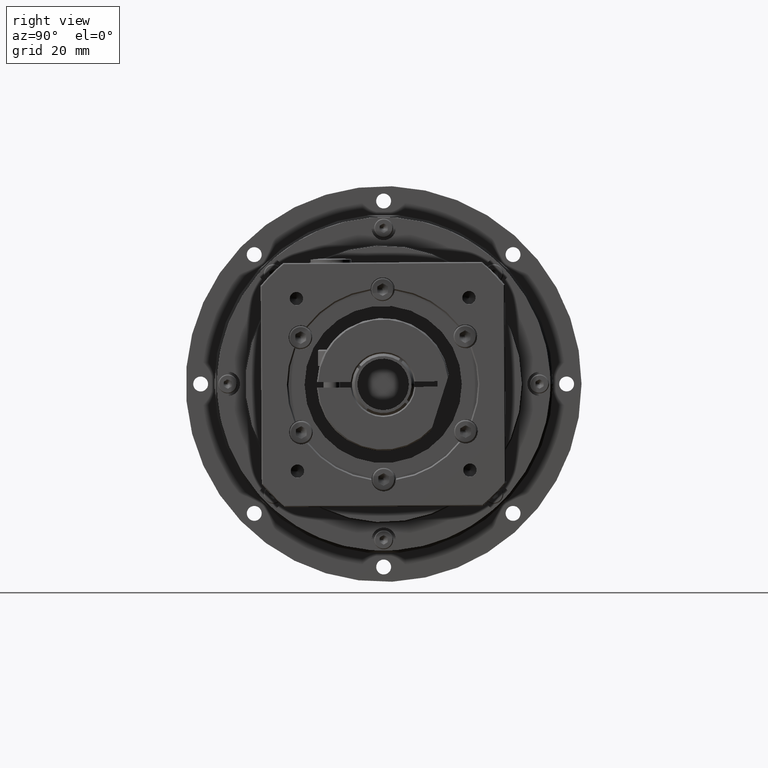
[diagram: clean part render]
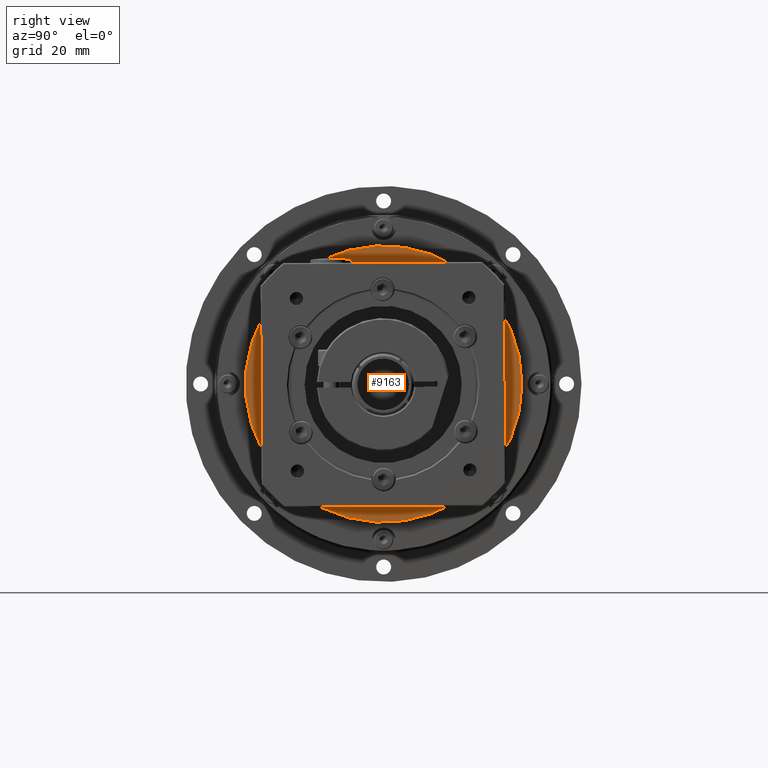
[diagram: same view with one face highlighted and labeled with its STEP entity id]
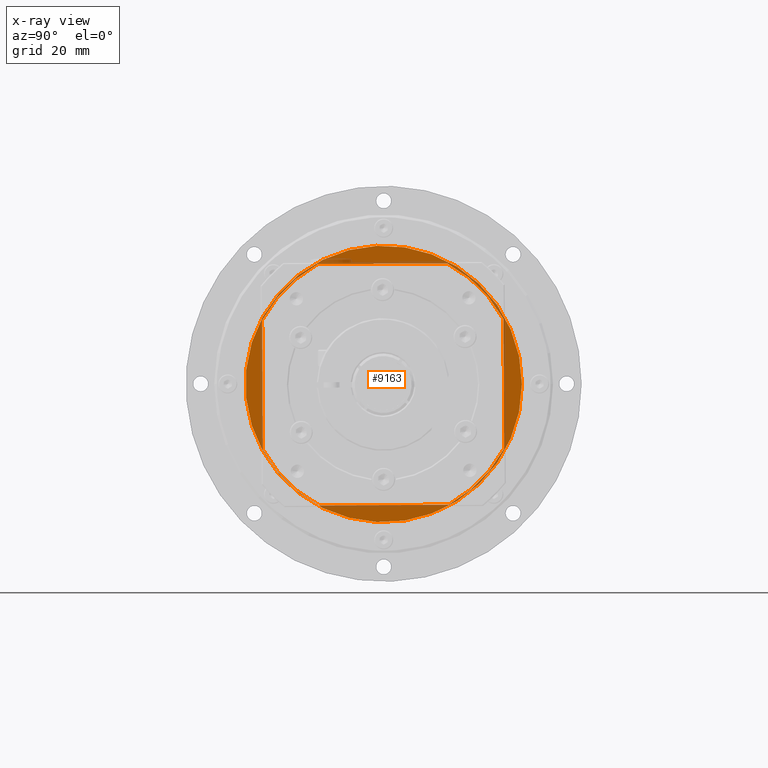
[diagram: x-ray of the same camera — body ghosted, the highlighted face saturated]
A machine part, right view. The second image highlights one B-rep face of the part: STEP entity #9163.
The next image is the same camera in x-ray: the body ghosted, the highlighted face saturated — about 19% of this face is hidden behind the body in this view.
In plain terms, the highlighted planar face has unit normal (1, -0, 0).
Its self-contained STEP definition (entity closure, byte-faithful):
#605=LINE('',#14768,#1032);
#606=LINE('',#14802,#1033);
#608=LINE('',#14840,#1035);
#610=LINE('',#14876,#1037);
#1032=VECTOR('',#11757,47.7493455452533);
#1033=VECTOR('',#11764,47.7493455452534);
#1035=VECTOR('',#11774,47.7493455452533);
#1037=VECTOR('',#11784,47.7493455452533);
#1414=PLANE('',#10122);
#1715=FACE_BOUND('',#3055,.T.);
#2250=FACE_OUTER_BOUND('',#3054,.T.);
#3054=EDGE_LOOP('',(#7270));
#3055=EDGE_LOOP('',(#7271,#7272,#7273,#7274,#7275,#7276,#7277,#7278));
#3699=CIRCLE('',#9946,50.5);
#3700=CIRCLE('',#9949,50.5);
#3701=CIRCLE('',#9952,50.5);
#3704=CIRCLE('',#9957,50.5);
#3791=CIRCLE('',#10123,51.);
#4365=VERTEX_POINT('',#14735);
#4366=VERTEX_POINT('',#14736);
#4367=VERTEX_POINT('',#14767);
#4368=VERTEX_POINT('',#14784);
#4369=VERTEX_POINT('',#14801);
#4370=VERTEX_POINT('',#14818);
#4373=VERTEX_POINT('',#14839);
#4375=VERTEX_POINT('',#14858);
#4485=VERTEX_POINT('',#15536);
#5327=EDGE_CURVE('',#4365,#4366,#3699,.T.);
#5330=EDGE_CURVE('',#4367,#4366,#605,.T.);
#5332=EDGE_CURVE('',#4367,#4368,#3700,.T.);
#5334=EDGE_CURVE('',#4369,#4368,#606,.T.);
#5336=EDGE_CURVE('',#4369,#4370,#3701,.T.);
#5340=EDGE_CURVE('',#4373,#4370,#608,.T.);
#5343=EDGE_CURVE('',#4373,#4375,#3704,.T.);
#5346=EDGE_CURVE('',#4365,#4375,#610,.T.);
#5502=EDGE_CURVE('',#4485,#4485,#3791,.T.);
#7270=ORIENTED_EDGE('',*,*,#5502,.T.);
#7271=ORIENTED_EDGE('',*,*,#5327,.F.);
#7272=ORIENTED_EDGE('',*,*,#5346,.T.);
#7273=ORIENTED_EDGE('',*,*,#5343,.F.);
#7274=ORIENTED_EDGE('',*,*,#5340,.T.);
#7275=ORIENTED_EDGE('',*,*,#5336,.F.);
#7276=ORIENTED_EDGE('',*,*,#5334,.T.);
#7277=ORIENTED_EDGE('',*,*,#5332,.F.);
#7278=ORIENTED_EDGE('',*,*,#5330,.T.);
#9163=ADVANCED_FACE('',(#2250,#1715),#1414,.T.);
#9946=AXIS2_PLACEMENT_3D('',#14737,#11753,#11754);
#9949=AXIS2_PLACEMENT_3D('',#14785,#11760,#11761);
#9952=AXIS2_PLACEMENT_3D('',#14819,#11767,#11768);
#9957=AXIS2_PLACEMENT_3D('',#14859,#11779,#11780);
#10122=AXIS2_PLACEMENT_3D('',#15535,#12151,#12152);
#10123=AXIS2_PLACEMENT_3D('',#15537,#12153,#12154);
#11753=DIRECTION('center_axis',(1.,-1.44809496965536E-15,-1.89007528704756E-16));
#11754=DIRECTION('ref_axis',(1.89007528704756E-16,0.,1.));
#11757=DIRECTION('',(-1.98943911672892E-16,-0.999984292022292,-0.00560497178188407));
#11760=DIRECTION('center_axis',(1.,-1.44809496965536E-15,-1.89007528704756E-16));
#11761=DIRECTION('ref_axis',(1.89007528704756E-16,0.,1.));
#11764=DIRECTION('',(-5.73985061655431E-16,0.00560497178188427,-0.999984292022292));
#11767=DIRECTION('center_axis',(1.,-1.44809496965536E-15,-1.89007528704756E-16));
#11768=DIRECTION('ref_axis',(1.89007528704756E-16,0.,1.));
#11774=DIRECTION('',(1.98943911672892E-16,0.999984292022292,0.00560497178188388));
#11779=DIRECTION('center_axis',(1.,-1.44809496965536E-15,-1.89007528704756E-16));
#11780=DIRECTION('ref_axis',(1.89007528704756E-16,0.,1.));
#11784=DIRECTION('',(5.73985061655431E-16,-0.00560497178188387,0.999984292022292));
#12151=DIRECTION('center_axis',(1.,-2.70046632271815E-15,1.9707606311247E-16));
#12152=DIRECTION('ref_axis',(1.99840144432528E-16,7.22883173359889E-5,-0.9999999973872));
#12153=DIRECTION('center_axis',(1.,-2.70046632271815E-15,1.9707606311247E-16));
#12154=DIRECTION('ref_axis',(1.97271274764041E-16,7.22883173358092E-5,-0.9999999973872));
#14735=CARTESIAN_POINT('',(0.862257164342619,6.42672477566799,-5.04928363033503));
#14736=CARTESIAN_POINT('',(0.86225716434261,27.1673323979626,-25.5586824984265));
#14737=CARTESIAN_POINT('Origin',(0.862257164342611,50.7922089034677,19.0744353637578));
#14767=CARTESIAN_POINT('',(0.862257164342619,74.9159278975605,-25.291048764042));
#14768=CARTESIAN_POINT('',(0.862257164342681,73.5412767182631,-25.2987537661419));
#14784=CARTESIAN_POINT('',(0.862257164342637,95.425326765652,-4.55044114174741));
#14785=CARTESIAN_POINT('Origin',(0.862257164342611,50.7922089034677,19.0744353637578));
#14801=CARTESIAN_POINT('',(0.862257164342664,95.1576930312674,43.1981543578506));
#14802=CARTESIAN_POINT('',(0.862257164342727,95.1653980333673,41.8235031785532));
#14818=CARTESIAN_POINT('',(0.862257164342672,74.4170854089729,63.707553225942));
#14819=CARTESIAN_POINT('Origin',(0.862257164342611,50.7922089034677,19.0744353637578));
#14839=CARTESIAN_POINT('',(0.862257164342664,26.6684899093749,63.4399194915575));
#14840=CARTESIAN_POINT('',(0.862257164342541,28.0431410886723,63.4476244936574));
#14858=CARTESIAN_POINT('',(0.862257164342646,6.15909104128343,42.6993118692629));
#14859=CARTESIAN_POINT('Origin',(0.862257164342611,50.7922089034677,19.0744353637578));
#14876=CARTESIAN_POINT('',(0.862257164342496,6.41901977356809,-3.67463245103766));
#15535=CARTESIAN_POINT('Origin',(0.862257164342612,50.9743906593711,19.2670534392925));
#15536=CARTESIAN_POINT('',(0.862257164342749,101.974390526118,19.2707401434766));
#15537=CARTESIAN_POINT('Origin',(0.862257164342612,50.9743906593711,19.2670534392925));